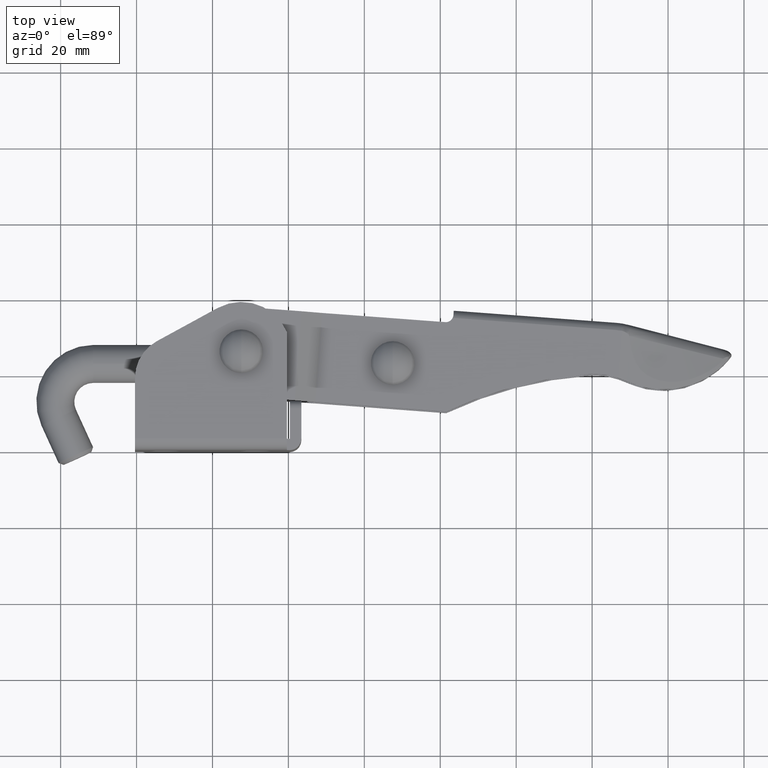
[diagram: clean part render]
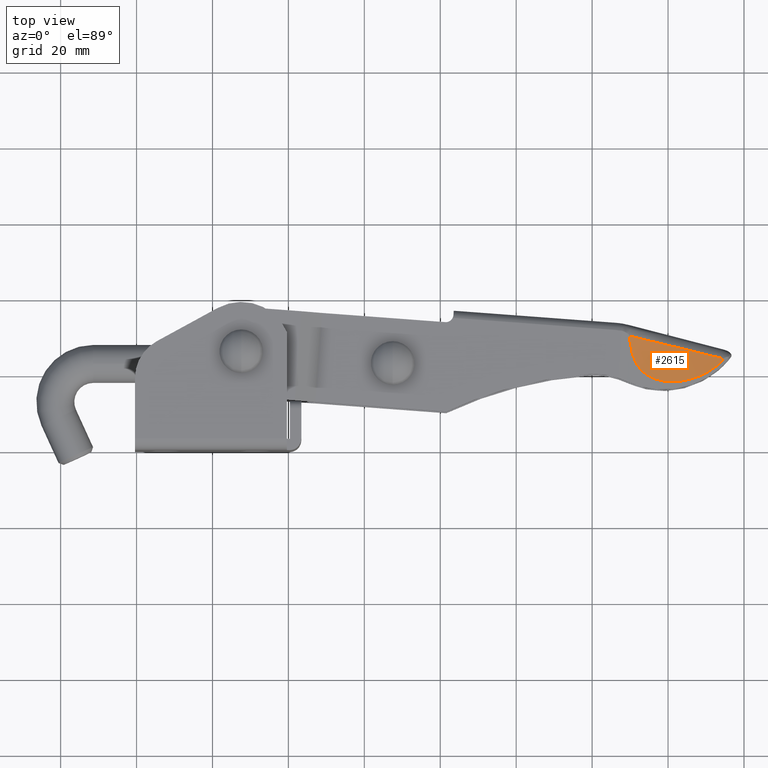
[diagram: same view with one face highlighted and labeled with its STEP entity id]
A machine part, top view. The second image highlights one B-rep face of the part: STEP entity #2615.
In plain terms, the highlighted face is a freeform B-spline surface patch.
Its self-contained STEP definition (entity closure, byte-faithful):
#192 = CARTESIAN_POINT ( 'NONE',  ( 109.9397356472985900, 29.02044416297374600, 11.50952623631402000 ) ) ;
#226 = CARTESIAN_POINT ( 'NONE',  ( 115.0512520650579200, 19.51803131285336300, 10.63608704970624100 ) ) ;
#260 = CARTESIAN_POINT ( 'NONE',  ( 128.8168281510961900, 19.91018508369046500, 6.812981240929739900 ) ) ;
#311 = CARTESIAN_POINT ( 'NONE',  ( 133.0856458819301100, 24.62458797244802600, 4.731046421932847000 ) ) ;
#536 = CARTESIAN_POINT ( 'NONE',  ( 126.3002775433201200, 5.380045854106716000, 9.377815615806010600 ) ) ;
#565 = CARTESIAN_POINT ( 'NONE',  ( 137.5076764339917200, 31.31953377358992400, 1.417476644087118500 ) ) ;
#595 = CARTESIAN_POINT ( 'NONE',  ( 134.5639069913368400, 4.764804853117227300, -4.690397334481292400 ) ) ;
#624 = CARTESIAN_POINT ( 'NONE',  ( 135.1237907710966200, 31.49701803891314000, -3.150187424128592100 ) ) ;
#654 = CARTESIAN_POINT ( 'NONE',  ( 105.9529817979430700, 6.894935973583312900, -12.00000000000001800 ) ) ;
#716 = B_SPLINE_CURVE_WITH_KNOTS ( 'NONE', 3,
 ( #192, #4636, #5396, #926, #6136, #1667, #6872, #2414, #7609, #3164, #8325, #3913, #9066, #4674, #226, #5433, #959, #6175, #1699, #6900, #2447, #7639, #3198, #8350, #3950, #9102, #4703, #260, #5466, #992, #6209, #1735, #6931, #2479, #7672, #3230, #8379, #3989, #9133, #4736 ),
 .UNSPECIFIED., .F., .F.,
 ( 4, 2, 2, 2, 2, 2, 2, 2, 2, 2, 2, 2, 2, 2, 2, 2, 2, 2, 2, 4 ),
 ( 0.0000000000000000000, 0.002109887026043907000, 0.004219774052087814000, 0.006329661078131721000, 0.007384604591153663700, 0.008439548104175607200, 0.01054943513021951500, 0.01160437864324148500, 0.01265932215626345400, 0.01476920918230739500, 0.01687909620835133200, 0.01898898323439526800, 0.02109887026043920700, 0.02531864431252707800, 0.02742853133857105200, 0.02953841836461502300, 0.03164830539065899300, 0.03270324890368098100, 0.03323072066019195500, 0.03375819241670292200 ),
 .UNSPECIFIED. ) ;
#861 = EDGE_LOOP ( 'NONE', ( #9470, #6394, #5873, #6386 ) ) ;
#926 = CARTESIAN_POINT ( 'NONE',  ( 110.3882106638068200, 26.23786069903746200, 11.42425675365455000 ) ) ;
#959 = CARTESIAN_POINT ( 'NONE',  ( 115.9935459213581800, 19.06229415056164800, 10.45752820902139900 ) ) ;
#992 = CARTESIAN_POINT ( 'NONE',  ( 130.5785551193632200, 20.85016058474666400, 6.096069735073741400 ) ) ;
#1052 = CARTESIAN_POINT ( 'NONE',  ( 131.8317936377305300, 24.92563264113940500, 5.180998622207720700 ) ) ;
#1269 = CARTESIAN_POINT ( 'NONE',  ( 128.5383973857125000, 5.213414097342939300, 8.737618677234744200 ) ) ;
#1299 = CARTESIAN_POINT ( 'NONE',  ( 137.6652702056981100, 31.30780065432752600, 1.066556982079086100 ) ) ;
#1330 = CARTESIAN_POINT ( 'NONE',  ( 133.6850727921824700, 4.830235525655628400, -5.850679061420867900 ) ) ;
#1340 = VERTEX_POINT ( 'NONE', #6953 ) ;
#1360 = CARTESIAN_POINT ( 'NONE',  ( 133.2171838966978300, 31.63896810205157800, -3.949252411322542200 ) ) ;
#1655 = CARTESIAN_POINT ( 'NONE',  ( 109.9397356472985900, 29.02044416297374600, 11.50952623631402000 ) ) ;
#1667 = CARTESIAN_POINT ( 'NONE',  ( 110.9928018691950200, 24.21458104410923800, 11.32284278976523600 ) ) ;
#1699 = CARTESIAN_POINT ( 'NONE',  ( 117.6281321185713300, 18.50486143615186000, 10.12622977003408000 ) ) ;
#1735 = CARTESIAN_POINT ( 'NONE',  ( 132.2310641271877500, 21.94567209429742900, 5.366096406590322900 ) ) ;
#1756 = CARTESIAN_POINT ( 'NONE',  ( 134.3051509156068400, 24.33190608251615200, 4.283454115246743600 ) ) ;
#1791 = CARTESIAN_POINT ( 'NONE',  ( 129.3151096454391500, 25.52731307026592200, 6.054467204659538000 ) ) ;
#1986 = CARTESIAN_POINT ( 'NONE',  ( 110.3383225651903400, 33.34233750355287600, 11.43690477273967900 ) ) ;
#2023 = CARTESIAN_POINT ( 'NONE',  ( 130.0595321160532500, 5.100163078523432400, 8.261172752657403300 ) ) ;
#2053 = CARTESIAN_POINT ( 'NONE',  ( 137.7746201774646400, 31.29965936646951600, 0.7126451066510641800 ) ) ;
#2087 = CARTESIAN_POINT ( 'NONE',  ( 132.7209506574932900, 4.902016027304900300, -6.775574637150116400 ) ) ;
#2112 = CARTESIAN_POINT ( 'NONE',  ( 130.1053937884144900, 31.87064606790581000, -5.183723360121853800 ) ) ;
#2414 = CARTESIAN_POINT ( 'NONE',  ( 111.7787744531404100, 22.62971201185665000, 11.19587384063752500 ) ) ;
#2438 = VERTEX_POINT ( 'NONE', #7476 ) ;
#2447 = CARTESIAN_POINT ( 'NONE',  ( 119.6755658582761000, 18.16285626439428600, 9.661314058993781400 ) ) ;
#2479 = CARTESIAN_POINT ( 'NONE',  ( 133.5207123564865100, 22.98050196612595300, 4.751469930767113300 ) ) ;
#2534 = CARTESIAN_POINT ( 'NONE',  ( 124.2479225162203400, 26.73204752770950100, 7.701710203905433300 ) ) ;
#2615 = ADVANCED_FACE ( 'NONE', ( #2761 ), #7621, .T. ) ;
#2694 = CARTESIAN_POINT ( 'NONE',  ( 105.9529817979430700, 6.894935973583229400, 12.00000000000002800 ) ) ;
#2717 = CARTESIAN_POINT ( 'NONE',  ( 115.4287399200702300, 32.96334743767785400, 10.13082568552225200 ) ) ;
#2747 = CARTESIAN_POINT ( 'NONE',  ( 130.7136556327295700, 5.051462491244881100, 8.016257455977298100 ) ) ;
#2761 = FACE_OUTER_BOUND ( 'NONE', #861, .T. ) ;
#2782 = CARTESIAN_POINT ( 'NONE',  ( 137.8384052329579400, 31.29491046265716400, 0.3567949655716778400 ) ) ;
#2814 = CARTESIAN_POINT ( 'NONE',  ( 131.7157438500741200, 4.976855351392254400, -7.489346591918955000 ) ) ;
#2844 = CARTESIAN_POINT ( 'NONE',  ( 126.7271871700968400, 32.12215918747121200, -6.444642736328921400 ) ) ;
#3164 = CARTESIAN_POINT ( 'NONE',  ( 112.3765317038733700, 21.76145769311882100, 11.09882432571267900 ) ) ;
#3198 = CARTESIAN_POINT ( 'NONE',  ( 121.7141555974719300, 18.11650895455827400, 9.140697898535401900 ) ) ;
#3230 = CARTESIAN_POINT ( 'NONE',  ( 134.0896667644584000, 23.59088251591857600, 4.456068278090875800 ) ) ;
#3251 = CARTESIAN_POINT ( 'NONE',  ( 134.2736499598622700, 24.33829165991540200, 4.295037873035002300 ) ) ;
#3268 = CARTESIAN_POINT ( 'NONE',  ( 134.5011408511061000, 24.27652192456662700, 4.208345158965562000 ) ) ;
#3285 = CARTESIAN_POINT ( 'NONE',  ( 114.0001835640084100, 29.14970844041523900, 10.59076710170808500 ) ) ;
#3465 = VERTEX_POINT ( 'NONE', #9308 ) ;
#3490 = CARTESIAN_POINT ( 'NONE',  ( 121.9179335673132800, 32.48021614285642800, 8.120792886120435500 ) ) ;
#3523 = CARTESIAN_POINT ( 'NONE',  ( 131.7157438500739200, 4.976855351392226900, 7.489346591918962100 ) ) ;
#3553 = CARTESIAN_POINT ( 'NONE',  ( 137.8596501597076000, 31.29332874241162100, 1.173726160365362200E-013 ) ) ;
#3582 = CARTESIAN_POINT ( 'NONE',  ( 130.7136556327296500, 5.051462491244930000, -8.016257455977294600 ) ) ;
#3615 = CARTESIAN_POINT ( 'NONE',  ( 121.9179335673134000, 32.48021614285648400, -8.120792886120218800 ) ) ;
#3778 = B_SPLINE_CURVE_WITH_KNOTS ( 'NONE', 3,
 ( #6096, #4620, #6122, #1655 ),
 .UNSPECIFIED., .F., .F.,
 ( 4, 4 ),
 ( 0.0003121587811051790100, 0.001402749664925829300 ),
 .UNSPECIFIED. ) ;
#3913 = CARTESIAN_POINT ( 'NONE',  ( 113.3258789694985200, 20.71049678051399900, 10.94149866669884800 ) ) ;
#3950 = CARTESIAN_POINT ( 'NONE',  ( 123.7438253834486500, 18.32215177031286400, 8.560700085524461000 ) ) ;
#3989 = CARTESIAN_POINT ( 'NONE',  ( 134.3889968683794200, 23.98694188204761300, 4.288708935708741300 ) ) ;
#4009 = CARTESIAN_POINT ( 'NONE',  ( 134.1175205436059300, 24.37598204537244600, 4.352905406615437100 ) ) ;
#4026 = CARTESIAN_POINT ( 'NONE',  ( 134.4179475249455300, 24.30021883734076100, 4.241817066980154000 ) ) ;
#4124 = EDGE_CURVE ( 'NONE', #1340, #6005, #3778, .T. ) ;
#4237 = CARTESIAN_POINT ( 'NONE',  ( 126.7271871700968100, 32.12215918747116200, 6.444642736329140800 ) ) ;
#4266 = CARTESIAN_POINT ( 'NONE',  ( 132.7209506574932900, 4.902016027304847900, 6.775574637150128900 ) ) ;
#4294 = CARTESIAN_POINT ( 'NONE',  ( 137.8384052329580000, 31.29491046265714300, -0.3567949655714617300 ) ) ;
#4335 = CARTESIAN_POINT ( 'NONE',  ( 130.0595321160532500, 5.100163078523487500, -8.261172752657405000 ) ) ;
#4359 = CARTESIAN_POINT ( 'NONE',  ( 115.4287399200701000, 32.96334743767793200, -10.13082568552197700 ) ) ;
#4620 = CARTESIAN_POINT ( 'NONE',  ( 109.8696766314906100, 29.74399240485533700, 11.52482253252952500 ) ) ;
#4636 = CARTESIAN_POINT ( 'NONE',  ( 110.0195223268288800, 28.31713218548517500, 11.49255262592715900 ) ) ;
#4674 = CARTESIAN_POINT ( 'NONE',  ( 114.7441223306078900, 19.69392951000292800, 10.69227069988424000 ) ) ;
#4703 = CARTESIAN_POINT ( 'NONE',  ( 126.9899253087515800, 19.12486538265533700, 7.503890422483414600 ) ) ;
#4736 = CARTESIAN_POINT ( 'NONE',  ( 134.5816222298979900, 24.25346963295076800, 4.172641414298508000 ) ) ;
#4759 = CARTESIAN_POINT ( 'NONE',  ( 133.4612390566693700, 24.53422330935742200, 4.594516673899949700 ) ) ;
#4959 = EDGE_CURVE ( 'NONE', #6005, #3465, #716, .T. ) ;
#4982 = CARTESIAN_POINT ( 'NONE',  ( 130.1053937884145500, 31.87064606790577400, 5.183723360122076700 ) ) ;
#5016 = CARTESIAN_POINT ( 'NONE',  ( 133.6850727921825500, 4.830235525655573300, 5.850679061420891000 ) ) ;
#5046 = CARTESIAN_POINT ( 'NONE',  ( 137.7746201774645600, 31.29965936646953800, -0.7126451066508225900 ) ) ;
#5077 = CARTESIAN_POINT ( 'NONE',  ( 128.5383973857125000, 5.213414097343001400, -8.737618677234753100 ) ) ;
#5104 = CARTESIAN_POINT ( 'NONE',  ( 110.3383225651904000, 33.34233750355294700, -11.43690477273943000 ) ) ;
#5132 = EDGE_CURVE ( 'NONE', #3465, #2438, #8087, .T. ) ;
#5308 = CARTESIAN_POINT ( 'NONE',  ( 109.9397356472985900, 29.02044416297374600, 11.50952623631402000 ) ) ;
#5396 = CARTESIAN_POINT ( 'NONE',  ( 110.1204235836368200, 27.61882422107083500, 11.47280052453327500 ) ) ;
#5433 = CARTESIAN_POINT ( 'NONE',  ( 115.6757013545482100, 19.20254463500693700, 10.51875338463102200 ) ) ;
#5466 = CARTESIAN_POINT ( 'NONE',  ( 129.4156278365519200, 20.20383353119385500, 6.576157240803875800 ) ) ;
#5492 = B_SPLINE_CURVE_WITH_KNOTS ( 'NONE', 3,
 ( #6955, #1756, #3251, #8407, #4009, #9153, #4759, #311, #5521, #1052, #6261, #1791, #6992, #2534, #7724, #3285, #8444 ),
 .UNSPECIFIED., .F., .F.,
 ( 4, 2, 1, 1, 1, 2, 2, 2, 2, 4 ),
 ( -5.996234328554847000E-008, 0.0001023716464188288500, 0.0002048032551809432500, 0.0004096664727051706800, 0.0008193929077536254700, 0.001638845777850611100, 0.003277751518044506400, 0.006555562998432296100, 0.01311118595920787900, 0.02622243188075908500 ),
 .UNSPECIFIED. ) ;
#5521 = CARTESIAN_POINT ( 'NONE',  ( 132.3338213378253800, 24.80526489180898500, 5.002395513051042500 ) ) ;
#5751 = CARTESIAN_POINT ( 'NONE',  ( 133.2171838966978900, 31.63896810205155000, 3.949252411322755000 ) ) ;
#5782 = CARTESIAN_POINT ( 'NONE',  ( 134.5639069913366100, 4.764804853117220200, 4.690397334481345700 ) ) ;
#5808 = CARTESIAN_POINT ( 'NONE',  ( 137.6652702056981400, 31.30780065432751900, -1.066556982078878900 ) ) ;
#5839 = CARTESIAN_POINT ( 'NONE',  ( 126.3002775433202100, 5.380045854106778200, -9.377815615806026600 ) ) ;
#5864 = CARTESIAN_POINT ( 'NONE',  ( 107.9353547447128000, 33.52124246734838000, -11.99999999999989700 ) ) ;
#5873 = ORIENTED_EDGE ( 'NONE', *, *, #4959, .T. ) ;
#6005 = VERTEX_POINT ( 'NONE', #5308 ) ;
#6096 = CARTESIAN_POINT ( 'NONE',  ( 109.8411680411884000, 30.10635219988223800, 11.53167119553308400 ) ) ;
#6122 = CARTESIAN_POINT ( 'NONE',  ( 109.9022480836508700, 29.38199751443992700, 11.51747574982238300 ) ) ;
#6136 = CARTESIAN_POINT ( 'NONE',  ( 110.5548414434984600, 25.55514350519313600, 11.39552795871451500 ) ) ;
#6175 = CARTESIAN_POINT ( 'NONE',  ( 116.9621577172025700, 18.68933855573671800, 10.26549888582156300 ) ) ;
#6209 = CARTESIAN_POINT ( 'NONE',  ( 131.1385720770788300, 21.20312102005287600, 5.854319356282459800 ) ) ;
#6261 = CARTESIAN_POINT ( 'NONE',  ( 130.3235447006135500, 25.28667137901765500, 5.710309065649501500 ) ) ;
#6386 = ORIENTED_EDGE ( 'NONE', *, *, #5132, .T. ) ;
#6394 = ORIENTED_EDGE ( 'NONE', *, *, #4124, .T. ) ;
#6441 = CARTESIAN_POINT ( 'NONE',  ( 107.9657503089389200, 6.745081999460212300, 12.00000000000003000 ) ) ;
#6470 = CARTESIAN_POINT ( 'NONE',  ( 135.1237907710966500, 31.49701803891311900, 3.150187424128795500 ) ) ;
#6502 = CARTESIAN_POINT ( 'NONE',  ( 135.2801464429946300, 4.711479630833466100, 3.298796581275473400 ) ) ;
#6530 = CARTESIAN_POINT ( 'NONE',  ( 137.5076764339918000, 31.31953377358993200, -1.417476644086882900 ) ) ;
#6565 = CARTESIAN_POINT ( 'NONE',  ( 123.2041315468043300, 5.610559089736358200, -10.12765956744273200 ) ) ;
#6872 = CARTESIAN_POINT ( 'NONE',  ( 111.2679275781829600, 23.55238778679363100, 11.27835040413229900 ) ) ;
#6900 = CARTESIAN_POINT ( 'NONE',  ( 118.9915972401959300, 18.24020396101947100, 9.822645664285040800 ) ) ;
#6931 = CARTESIAN_POINT ( 'NONE',  ( 132.7687401087304700, 22.32703596603304400, 5.118488571865324100 ) ) ;
#6953 = CARTESIAN_POINT ( 'NONE',  ( 109.8411680411884000, 30.10635219988223800, 11.53167119553308400 ) ) ;
#6955 = CARTESIAN_POINT ( 'NONE',  ( 134.3360871146693400, 24.32321388460880500, 4.271851978869585200 ) ) ;
#6992 = CARTESIAN_POINT ( 'NONE',  ( 126.2816236478593300, 26.24965252843285400, 7.062259811622573700 ) ) ;
#7186 = CARTESIAN_POINT ( 'NONE',  ( 111.7989757901453300, 6.459691966314174700, 11.85077654912726100 ) ) ;
#7217 = CARTESIAN_POINT ( 'NONE',  ( 136.2815642151977600, 31.41081987415406800, 2.653520864762054300 ) ) ;
#7251 = CARTESIAN_POINT ( 'NONE',  ( 135.7582269446407100, 4.675885739767009500, 1.707742402288776400 ) ) ;
#7281 = CARTESIAN_POINT ( 'NONE',  ( 137.2920880131426900, 31.33558469125023600, -1.764149335464165700 ) ) ;
#7310 = CARTESIAN_POINT ( 'NONE',  ( 120.2628460523097300, 5.829542702592213700, -10.72087771173851100 ) ) ;
#7412 = EDGE_CURVE ( 'NONE', #2438, #1340, #5492, .T. ) ;
#7476 = CARTESIAN_POINT ( 'NONE',  ( 134.3360871146693400, 24.32321388460880500, 4.271851978869585200 ) ) ;
#7609 = CARTESIAN_POINT ( 'NONE',  ( 111.9656883181852000, 22.33255790881430200, 11.16569237314051600 ) ) ;
#7621 = B_SPLINE_SURFACE_WITH_KNOTS ( 'NONE', 3, 1, ( 
 ( #2694, #9337 ),
 ( #6441, #1986 ),
 ( #7186, #2717 ),
 ( #7909, #3490 ),
 ( #8629, #4237 ),
 ( #9368, #4982 ),
 ( #536, #5751 ),
 ( #1269, #6470 ),
 ( #2023, #7217 ),
 ( #2747, #7934 ),
 ( #3523, #8660 ),
 ( #4266, #9398 ),
 ( #5016, #565 ),
 ( #5782, #1299 ),
 ( #6502, #2053 ),
 ( #7251, #2782 ),
 ( #7961, #3553 ),
 ( #8690, #4294 ),
 ( #9433, #5046 ),
 ( #595, #5808 ),
 ( #1330, #6530 ),
 ( #2087, #7281 ),
 ( #2814, #7993 ),
 ( #3582, #8719 ),
 ( #4335, #9459 ),
 ( #5077, #624 ),
 ( #5839, #1360 ),
 ( #6565, #2112 ),
 ( #7310, #2844 ),
 ( #8020, #3615 ),
 ( #8748, #4359 ),
 ( #9487, #5104 ),
 ( #654, #5864 ) ),
 .UNSPECIFIED., .F., .F., .F.,
 ( 4, 1, 1, 1, 1, 1, 2, 1, 1, 1, 1, 1, 1, 1, 1, 1, 1, 1, 1, 1, 1, 1, 2, 1, 1, 1, 1, 1, 4 ),
 ( 2, 2 ),
 ( 0.0000000000000000000, 0.09865339587130792000, 0.1973067917426158400, 0.2466334896782698400, 0.2959601876139237900, 0.3452868855495777600, 0.3946135834852316800, 0.4077868855495778200, 0.4209601876139237900, 0.4341334896782699200, 0.4473067917426159500, 0.4604800938069619800, 0.4736533958713080600, 0.4868266979356542000, 0.5000000000000002200, 0.5131733020643463000, 0.5263466041286923900, 0.5395199061930384700, 0.5526932082573844400, 0.5658665103217306300, 0.5790398123860767100, 0.5922131144504226800, 0.6053864165147687700, 0.6547131144504226800, 0.7040398123860767100, 0.7533665103217304100, 0.8026932082573843300, 0.9013466041286921600, 1.000000000000000000 ),
 ( 0.0000000000000000000, 1.000000000000000000 ),
 .UNSPECIFIED. ) ;
#7639 = CARTESIAN_POINT ( 'NONE',  ( 121.0359181152841600, 18.10140656364548300, 9.320524198620756100 ) ) ;
#7672 = CARTESIAN_POINT ( 'NONE',  ( 133.7645212521425400, 23.21345274140418600, 4.628794080456579300 ) ) ;
#7724 = CARTESIAN_POINT ( 'NONE',  ( 118.1206684879348900, 28.18093147591626700, 9.516545907667126200 ) ) ;
#7909 = CARTESIAN_POINT ( 'NONE',  ( 116.4596857702642400, 6.112694331494250100, 11.34344821982211100 ) ) ;
#7934 = CARTESIAN_POINT ( 'NONE',  ( 136.6283980566539600, 31.38499751593522200, 2.438405578614507800 ) ) ;
#7961 = CARTESIAN_POINT ( 'NONE',  ( 135.9262034277691700, 4.663379610314707200, 1.593478031792283700E-014 ) ) ;
#7993 = CARTESIAN_POINT ( 'NONE',  ( 137.0108002202815700, 31.35652703678185200, -2.105162778725502300 ) ) ;
#8020 = CARTESIAN_POINT ( 'NONE',  ( 116.4596857702641900, 6.112694331494330100, -11.34344821982208500 ) ) ;
#8087 = B_SPLINE_CURVE_WITH_KNOTS ( 'NONE', 3,
 ( #8514, #3268, #4026, #9167 ),
 .UNSPECIFIED., .F., .F.,
 ( 4, 4 ),
 ( 0.005262131328636437300, 0.005532664051453532900 ),
 .UNSPECIFIED. ) ;
#8325 = CARTESIAN_POINT ( 'NONE',  ( 112.6022530577012600, 21.48570488226360500, 11.06183947718045100 ) ) ;
#8350 = CARTESIAN_POINT ( 'NONE',  ( 123.0664062907854400, 18.22596164595332300, 8.761378047318594000 ) ) ;
#8379 = CARTESIAN_POINT ( 'NONE',  ( 134.1904794855549600, 23.72260717071993600, 4.401135794948439500 ) ) ;
#8407 = CARTESIAN_POINT ( 'NONE',  ( 134.2112023659289000, 24.35336827616079700, 4.318195990593873800 ) ) ;
#8444 = CARTESIAN_POINT ( 'NONE',  ( 109.8411680411884000, 30.10635219988223800, 11.53167119553308400 ) ) ;
#8514 = CARTESIAN_POINT ( 'NONE',  ( 134.5816222298979900, 24.25346963295076800, 4.172641414298508000 ) ) ;
#8629 = CARTESIAN_POINT ( 'NONE',  ( 120.2628460523096000, 5.829542702592154200, 10.72087771173850300 ) ) ;
#8660 = CARTESIAN_POINT ( 'NONE',  ( 137.0108002202816000, 31.35652703678183800, 2.105162778725725200 ) ) ;
#8690 = CARTESIAN_POINT ( 'NONE',  ( 135.7582269446407100, 4.675885739767005900, -1.707742402288739300 ) ) ;
#8719 = CARTESIAN_POINT ( 'NONE',  ( 136.6283980566539400, 31.38499751593523600, -2.438405578614323500 ) ) ;
#8748 = CARTESIAN_POINT ( 'NONE',  ( 111.7989757901452200, 6.459691966314278700, -11.85077654912727500 ) ) ;
#9066 = CARTESIAN_POINT ( 'NONE',  ( 113.8644671501865600, 20.26630851023770000, 10.84975120527062800 ) ) ;
#9102 = CARTESIAN_POINT ( 'NONE',  ( 125.7243599840971800, 18.72081247862663700, 7.941807455077783300 ) ) ;
#9133 = CARTESIAN_POINT ( 'NONE',  ( 134.4866326268109700, 24.11956664399261300, 4.231146130102744400 ) ) ;
#9153 = CARTESIAN_POINT ( 'NONE',  ( 133.8988567573084400, 24.42873951097382300, 4.433700079112247400 ) ) ;
#9167 = CARTESIAN_POINT ( 'NONE',  ( 134.3360871146693400, 24.32321388460880500, 4.271851978869585200 ) ) ;
#9308 = CARTESIAN_POINT ( 'NONE',  ( 134.5816222298979900, 24.25346963295076800, 4.172641414298508000 ) ) ;
#9337 = CARTESIAN_POINT ( 'NONE',  ( 107.9353547447127500, 33.52124246734830800, 12.00000000000014900 ) ) ;
#9368 = CARTESIAN_POINT ( 'NONE',  ( 123.2041315468045300, 5.610559089736274700, 10.12765956744272200 ) ) ;
#9398 = CARTESIAN_POINT ( 'NONE',  ( 137.2920880131426600, 31.33558469125022200, 1.764149335464374200 ) ) ;
#9433 = CARTESIAN_POINT ( 'NONE',  ( 135.2801464429946300, 4.711479630833500700, -3.298796581275445400 ) ) ;
#9459 = CARTESIAN_POINT ( 'NONE',  ( 136.2815642151977300, 31.41081987415409000, -2.653520864761870400 ) ) ;
#9470 = ORIENTED_EDGE ( 'NONE', *, *, #7412, .T. ) ;
#9487 = CARTESIAN_POINT ( 'NONE',  ( 107.9657503089389100, 6.745081999460302800, -12.00000000000001800 ) ) ;